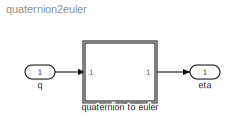
MODEL quaternion2euler
KIND model
BLOCK [Outport] eta
  IconDisplay = Port number
  PortDimensions = 3
  SID = 3
BLOCK [Inport] q
  IconDisplay = Port number
  PortDimensions = 4
  SID = 2
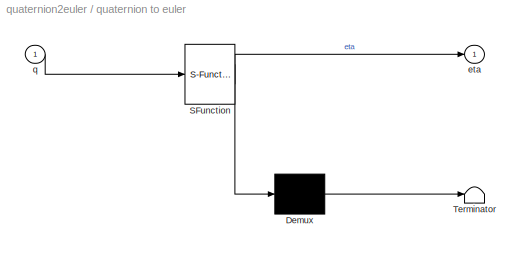
BLOCK [SubSystem] quaternion to euler
  ErrorFcn = Stateflow.Translate.translate
  PermitHierarchicalResolution = ExplicitOnly
  Ports = [1, 1]
  RequestExecContextInheritance = off
  SFBlockType = MATLAB Function
  SID = 1
  TreatAsAtomicUnit = on
  Variant = off
BLOCK [Demux] quaternion to euler/ Demux 
  Outputs = 1
  Ports = [1, 1]
  SID = 1::17
BLOCK [S-Function] quaternion to euler/ SFunction 
  EnableBusSupport = on
  FunctionName = sf_sfun
  PortCounts = [1 2]
  Ports = [1, 2]
  SFunctionDeploymentMode = off
  SID = 1::16
  Tag = Stateflow S-Function quaternion2euler 6
BLOCK [Terminator] quaternion to euler/ Terminator 
  SID = 1::18
BLOCK [Outport] quaternion to euler/eta
  IconDisplay = Port number
  SID = 1::5
BLOCK [Inport] quaternion to euler/q
  IconDisplay = Port number
  SID = 1::1
LINE q:1 -> quaternion to euler:1
LINE quaternion to euler/ Demux :1 -> quaternion to euler/ Terminator :1
LINE quaternion to euler/ SFunction :1 -> quaternion to euler/ Demux :1
LINE quaternion to euler/ SFunction :2 -> quaternion to euler/eta:1
LINE quaternion to euler/q:1 -> quaternion to euler/ SFunction :1
LINE quaternion to euler:1 -> eta:1
CHART quaternion to euler states=1 transitions=1
  STATE_LABEL 'eML_blk_kernel()'
